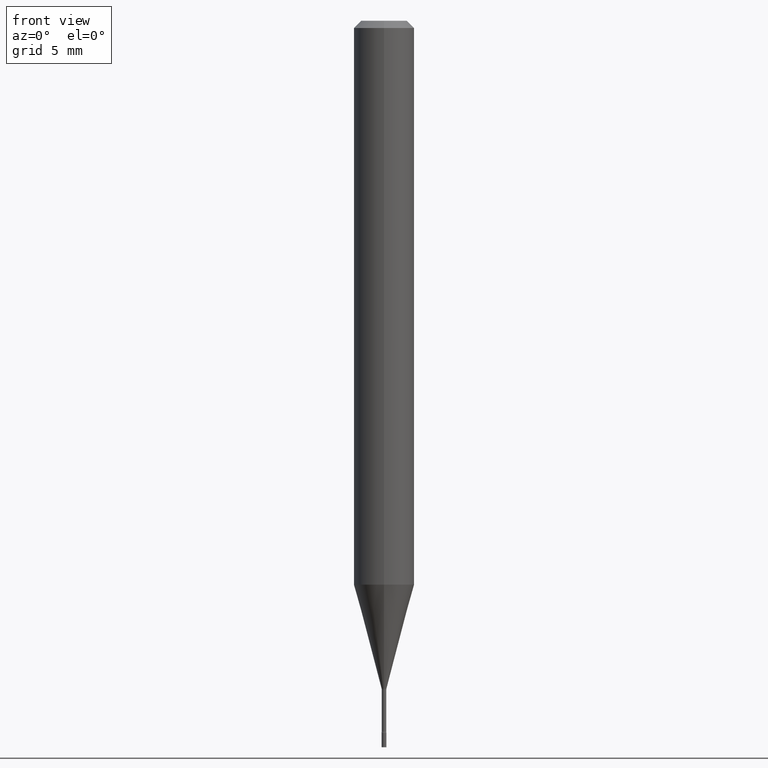
[diagram: clean part render]
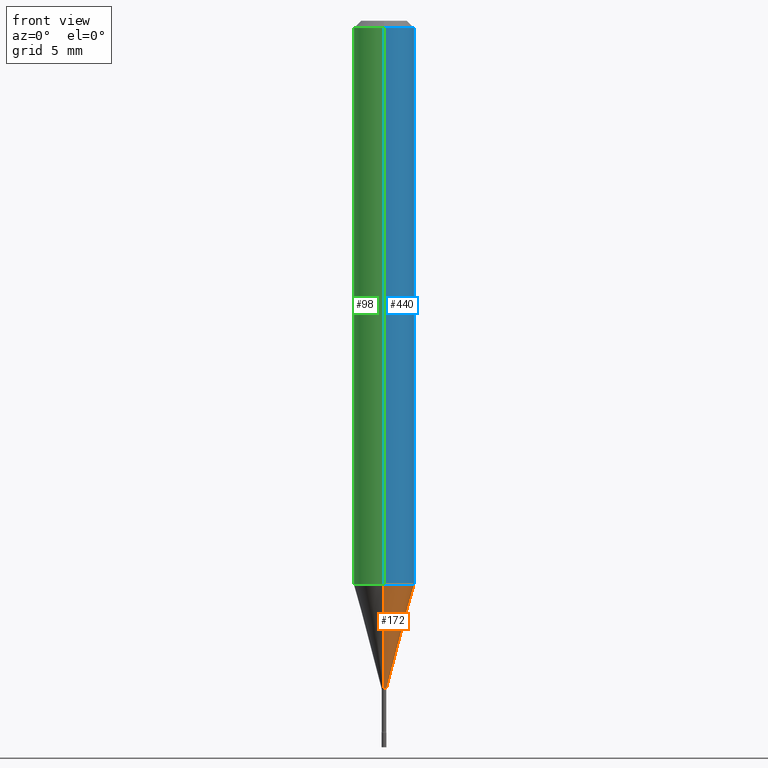
[diagram: same view with three faces highlighted in distinct colors, each labeled with its STEP entity id]
A machine part, front view with three faces highlighted in distinct colors.
Their STEP definitions:

[orange] entity #172 — the highlighted conical surface has half-angle 15 deg.
#18 = DIRECTION ( 'NONE',  ( -1.807323732225325801E-15, -0.2588190451025175753, 0.9659258262890690894 ) ) ;
#23 = VECTOR ( 'NONE', #179, 39.37007874015748143 ) ;
#24 = CARTESIAN_POINT ( 'NONE',  ( 2.844992710246418871E-29, -4.068289977148127894E-15, -1.164287463322519312 ) ) ;
#35 = EDGE_CURVE ( 'NONE', #59, #461, #112, .T. ) ;
#45 = CARTESIAN_POINT ( 'NONE',  ( 2.405581959609744668E-16, 0.005211112605659107451, -1.378092501787273605 ) ) ;
#59 = VERTEX_POINT ( 'NONE', #160 ) ;
#64 = ORIENTED_EDGE ( 'NONE', *, *, #196, .T. ) ;
#88 = FACE_OUTER_BOUND ( 'NONE', #477, .T. ) ;
#103 = CONICAL_SURFACE ( 'NONE', #173, 0.005211112605663922176, 0.2617993877991496299 ) ;
#112 = CIRCLE ( 'NONE', #200, 0.06250000000000000000 ) ;
#141 = CARTESIAN_POINT ( 'NONE',  ( -3.638900483453792750E-17, -0.005211112605668736901, -1.378092501787273605 ) ) ;
#149 = CARTESIAN_POINT ( 'NONE',  ( 4.440892098500909166E-16, 0.06249999999999592687, -1.164287463322519756 ) ) ;
#160 = CARTESIAN_POINT ( 'NONE',  ( -4.364351673553632704E-16, -0.06250000000000409395, -1.164287463322519089 ) ) ;
#161 = DIRECTION ( 'NONE',  ( -6.982962677686266711E-15, -1.000000000000000000, 0.000000000000000000 ) ) ;
#172 = ADVANCED_FACE ( 'NONE', ( #88 ), #103, .T. ) ;
#173 = AXIS2_PLACEMENT_3D ( 'NONE', #480, #249, #408 ) ;
#179 = DIRECTION ( 'NONE',  ( 1.839019923739595977E-15, 0.2588190451025243477, 0.9659258262890673130 ) ) ;
#187 = ORIENTED_EDGE ( 'NONE', *, *, #35, .F. ) ;
#196 = EDGE_CURVE ( 'NONE', #333, #223, #508, .T. ) ;
#198 = DIRECTION ( 'NONE',  ( -2.443548350273979842E-29, 3.494231541013484415E-15, 1.000000000000000000 ) ) ;
#200 = AXIS2_PLACEMENT_3D ( 'NONE', #24, #198, #398 ) ;
#213 = CARTESIAN_POINT ( 'NONE',  ( 3.367435659267233569E-29, -4.815374286179273696E-15, -1.378092501787273605 ) ) ;
#223 = VERTEX_POINT ( 'NONE', #45 ) ;
#249 = DIRECTION ( 'NONE',  ( -2.443548350273979842E-29, 3.494231541013484415E-15, 1.000000000000000000 ) ) ;
#254 = VECTOR ( 'NONE', #18, 39.37007874015748854 ) ;
#265 = ORIENTED_EDGE ( 'NONE', *, *, #354, .T. ) ;
#296 = CARTESIAN_POINT ( 'NONE',  ( 3.702718207185754248E-17, 0.005211112605659107451, -1.378092501787273605 ) ) ;
#299 = ORIENTED_EDGE ( 'NONE', *, *, #402, .F. ) ;
#329 = LINE ( 'NONE', #296, #23 ) ;
#333 = VERTEX_POINT ( 'NONE', #141 ) ;
#347 = CARTESIAN_POINT ( 'NONE',  ( -3.638900483453792750E-17, -0.005211112605668736901, -1.378092501787273605 ) ) ;
#354 = EDGE_CURVE ( 'NONE', #223, #461, #329, .T. ) ;
#368 = AXIS2_PLACEMENT_3D ( 'NONE', #213, #512, #161 ) ;
#398 = DIRECTION ( 'NONE',  ( -6.982962677686265922E-15, -1.000000000000000000, 4.370956789862821150E-15 ) ) ;
#402 = EDGE_CURVE ( 'NONE', #333, #59, #467, .T. ) ;
#408 = DIRECTION ( 'NONE',  ( -6.982962677686266711E-15, -1.000000000000000000, 0.000000000000000000 ) ) ;
#461 = VERTEX_POINT ( 'NONE', #149 ) ;
#467 = LINE ( 'NONE', #347, #254 ) ;
#477 = EDGE_LOOP ( 'NONE', ( #64, #265, #187, #299 ) ) ;
#480 = CARTESIAN_POINT ( 'NONE',  ( 3.367435659267233569E-29, -4.815374286179273696E-15, -1.378092501787273605 ) ) ;
#508 = CIRCLE ( 'NONE', #368, 0.005211112605663922176 ) ;
#512 = DIRECTION ( 'NONE',  ( -2.443548350273979842E-29, 3.494231541013484415E-15, 1.000000000000000000 ) ) ;

[blue] entity #440 — the highlighted cylindrical surface (edge-blend (fillet) strip) has radius 1.5875 mm, axis along (-0, 0, 1).
#20 = CARTESIAN_POINT ( 'NONE',  ( 4.440892098500912124E-16, 0.06249999999999995143, -0.01500000000000024751 ) ) ;
#24 = CARTESIAN_POINT ( 'NONE',  ( 2.844992710246418871E-29, -4.068289977148127894E-15, -1.164287463322519312 ) ) ;
#29 = VECTOR ( 'NONE', #250, 39.37007874015748143 ) ;
#35 = EDGE_CURVE ( 'NONE', #59, #461, #112, .T. ) ;
#50 = CARTESIAN_POINT ( 'NONE',  ( 3.665322525410976875E-31, -5.241347311520237321E-17, -0.01500000000000003067 ) ) ;
#52 = ORIENTED_EDGE ( 'NONE', *, *, #400, .F. ) ;
#59 = VERTEX_POINT ( 'NONE', #160 ) ;
#77 = AXIS2_PLACEMENT_3D ( 'NONE', #385, #154, #110 ) ;
#110 = DIRECTION ( 'NONE',  ( -6.982962677686265922E-15, -1.000000000000000000, 3.494231541013484415E-15 ) ) ;
#112 = CIRCLE ( 'NONE', #200, 0.06250000000000000000 ) ;
#139 = VECTOR ( 'NONE', #312, 39.37007874015748143 ) ;
#140 = VERTEX_POINT ( 'NONE', #245 ) ;
#149 = CARTESIAN_POINT ( 'NONE',  ( 4.440892098500909166E-16, 0.06249999999999592687, -1.164287463322519756 ) ) ;
#153 = ORIENTED_EDGE ( 'NONE', *, *, #178, .T. ) ;
#154 = DIRECTION ( 'NONE',  ( -2.443548350273979842E-29, 3.494231541013484415E-15, 1.000000000000000000 ) ) ;
#160 = CARTESIAN_POINT ( 'NONE',  ( -4.364351673553632704E-16, -0.06250000000000409395, -1.164287463322519089 ) ) ;
#178 = EDGE_CURVE ( 'NONE', #461, #491, #404, .T. ) ;
#198 = DIRECTION ( 'NONE',  ( -2.443548350273979842E-29, 3.494231541013484415E-15, 1.000000000000000000 ) ) ;
#200 = AXIS2_PLACEMENT_3D ( 'NONE', #24, #198, #398 ) ;
#201 = AXIS2_PLACEMENT_3D ( 'NONE', #50, #490, #251 ) ;
#245 = CARTESIAN_POINT ( 'NONE',  ( -4.364351673553912750E-16, -0.06250000000000005551, -0.01499999999999981209 ) ) ;
#250 = DIRECTION ( 'NONE',  ( -2.443548350273979842E-29, 3.494231541013484415E-15, 1.000000000000000000 ) ) ;
#251 = DIRECTION ( 'NONE',  ( -6.982962677686265922E-15, -1.000000000000000000, 3.483106191921935554E-15 ) ) ;
#260 = ORIENTED_EDGE ( 'NONE', *, *, #35, .T. ) ;
#262 = CIRCLE ( 'NONE', #201, 0.06250000000000000000 ) ;
#263 = EDGE_LOOP ( 'NONE', ( #260, #153, #52, #353 ) ) ;
#301 = LINE ( 'NONE', #342, #139 ) ;
#312 = DIRECTION ( 'NONE',  ( -2.443548350273979842E-29, 3.494231541013484415E-15, 1.000000000000000000 ) ) ;
#342 = CARTESIAN_POINT ( 'NONE',  ( -4.364351673553916201E-16, -0.06250000000000000000, 2.183894713133427759E-16 ) ) ;
#353 = ORIENTED_EDGE ( 'NONE', *, *, #519, .F. ) ;
#363 = CARTESIAN_POINT ( 'NONE',  ( 4.440892098500625669E-16, 0.06250000000000000000, -2.183894713133427759E-16 ) ) ;
#385 = CARTESIAN_POINT ( 'NONE',  ( 0.000000000000000000, 0.000000000000000000, 0.000000000000000000 ) ) ;
#398 = DIRECTION ( 'NONE',  ( -6.982962677686265922E-15, -1.000000000000000000, 4.370956789862821150E-15 ) ) ;
#400 = EDGE_CURVE ( 'NONE', #140, #491, #262, .T. ) ;
#404 = LINE ( 'NONE', #363, #29 ) ;
#436 = CYLINDRICAL_SURFACE ( 'NONE', #77, 0.06250000000000000000 ) ;
#440 = ADVANCED_FACE ( 'NONE', ( #500 ), #436, .T. ) ;
#461 = VERTEX_POINT ( 'NONE', #149 ) ;
#490 = DIRECTION ( 'NONE',  ( -2.443548350273979842E-29, 3.494231541013484415E-15, 1.000000000000000000 ) ) ;
#491 = VERTEX_POINT ( 'NONE', #20 ) ;
#500 = FACE_OUTER_BOUND ( 'NONE', #263, .T. ) ;
#519 = EDGE_CURVE ( 'NONE', #59, #140, #301, .T. ) ;

[green] entity #98 — the highlighted cylindrical surface (edge-blend (fillet) strip) has radius 1.5875 mm, axis along (-0, 0, 1).
#17 = EDGE_CURVE ( 'NONE', #491, #140, #300, .T. ) ;
#20 = CARTESIAN_POINT ( 'NONE',  ( 4.440892098500912124E-16, 0.06249999999999995143, -0.01500000000000024751 ) ) ;
#22 = CIRCLE ( 'NONE', #65, 0.06250000000000000000 ) ;
#27 = EDGE_CURVE ( 'NONE', #461, #59, #22, .T. ) ;
#28 = DIRECTION ( 'NONE',  ( -6.982962677686265922E-15, -1.000000000000000000, 3.483106191921935554E-15 ) ) ;
#29 = VECTOR ( 'NONE', #250, 39.37007874015748143 ) ;
#32 = CARTESIAN_POINT ( 'NONE',  ( 3.665322525410976875E-31, -5.241347311520237321E-17, -0.01500000000000003067 ) ) ;
#59 = VERTEX_POINT ( 'NONE', #160 ) ;
#65 = AXIS2_PLACEMENT_3D ( 'NONE', #232, #197, #350 ) ;
#74 = DIRECTION ( 'NONE',  ( -2.443548350273979842E-29, 3.494231541013484415E-15, 1.000000000000000000 ) ) ;
#98 = ADVANCED_FACE ( 'NONE', ( #211 ), #326, .T. ) ;
#139 = VECTOR ( 'NONE', #312, 39.37007874015748143 ) ;
#140 = VERTEX_POINT ( 'NONE', #245 ) ;
#149 = CARTESIAN_POINT ( 'NONE',  ( 4.440892098500909166E-16, 0.06249999999999592687, -1.164287463322519756 ) ) ;
#160 = CARTESIAN_POINT ( 'NONE',  ( -4.364351673553632704E-16, -0.06250000000000409395, -1.164287463322519089 ) ) ;
#178 = EDGE_CURVE ( 'NONE', #461, #491, #404, .T. ) ;
#197 = DIRECTION ( 'NONE',  ( -2.443548350273979842E-29, 3.494231541013484415E-15, 1.000000000000000000 ) ) ;
#211 = FACE_OUTER_BOUND ( 'NONE', #425, .T. ) ;
#224 = AXIS2_PLACEMENT_3D ( 'NONE', #447, #241, #318 ) ;
#230 = ORIENTED_EDGE ( 'NONE', *, *, #27, .T. ) ;
#232 = CARTESIAN_POINT ( 'NONE',  ( 2.844992710246418871E-29, -4.068289977148127894E-15, -1.164287463322519312 ) ) ;
#236 = ORIENTED_EDGE ( 'NONE', *, *, #519, .T. ) ;
#241 = DIRECTION ( 'NONE',  ( -2.443548350273979842E-29, 3.494231541013484415E-15, 1.000000000000000000 ) ) ;
#245 = CARTESIAN_POINT ( 'NONE',  ( -4.364351673553912750E-16, -0.06250000000000005551, -0.01499999999999981209 ) ) ;
#250 = DIRECTION ( 'NONE',  ( -2.443548350273979842E-29, 3.494231541013484415E-15, 1.000000000000000000 ) ) ;
#300 = CIRCLE ( 'NONE', #516, 0.06250000000000000000 ) ;
#301 = LINE ( 'NONE', #342, #139 ) ;
#312 = DIRECTION ( 'NONE',  ( -2.443548350273979842E-29, 3.494231541013484415E-15, 1.000000000000000000 ) ) ;
#318 = DIRECTION ( 'NONE',  ( -6.982962677686265922E-15, -1.000000000000000000, 3.494231541013484415E-15 ) ) ;
#326 = CYLINDRICAL_SURFACE ( 'NONE', #224, 0.06250000000000000000 ) ;
#342 = CARTESIAN_POINT ( 'NONE',  ( -4.364351673553916201E-16, -0.06250000000000000000, 2.183894713133427759E-16 ) ) ;
#350 = DIRECTION ( 'NONE',  ( -6.982962677686265922E-15, -1.000000000000000000, 4.370956789862821150E-15 ) ) ;
#363 = CARTESIAN_POINT ( 'NONE',  ( 4.440892098500625669E-16, 0.06250000000000000000, -2.183894713133427759E-16 ) ) ;
#404 = LINE ( 'NONE', #363, #29 ) ;
#414 = ORIENTED_EDGE ( 'NONE', *, *, #178, .F. ) ;
#425 = EDGE_LOOP ( 'NONE', ( #414, #230, #236, #429 ) ) ;
#429 = ORIENTED_EDGE ( 'NONE', *, *, #17, .F. ) ;
#447 = CARTESIAN_POINT ( 'NONE',  ( 0.000000000000000000, 0.000000000000000000, 0.000000000000000000 ) ) ;
#461 = VERTEX_POINT ( 'NONE', #149 ) ;
#491 = VERTEX_POINT ( 'NONE', #20 ) ;
#516 = AXIS2_PLACEMENT_3D ( 'NONE', #32, #74, #28 ) ;
#519 = EDGE_CURVE ( 'NONE', #59, #140, #301, .T. ) ;